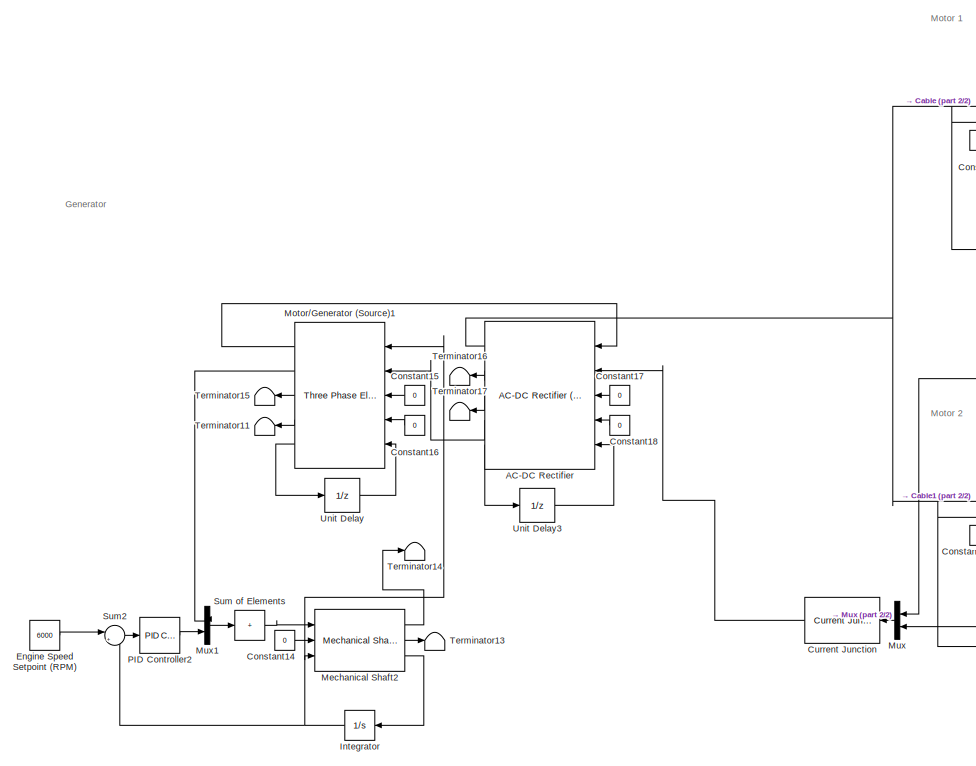
[diagram: root canvas - part 1/2, left side, full height]
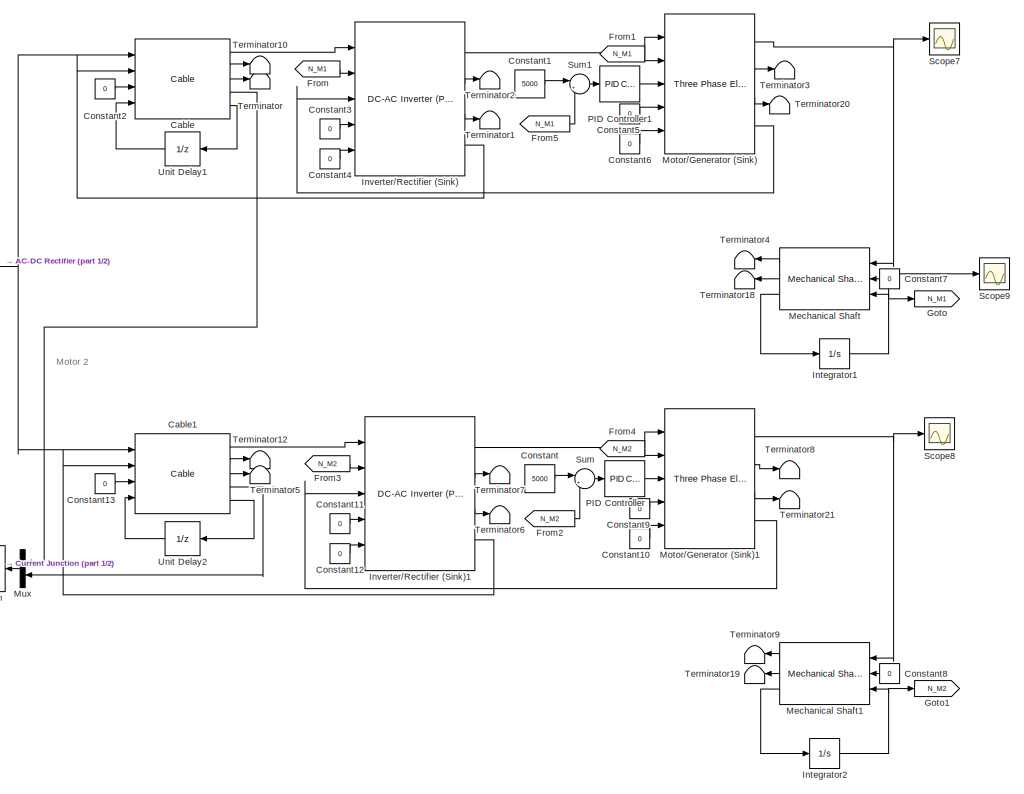
[diagram: root canvas - part 2/2, right side, full height]
MODEL slx_b73fb6815965
KIND model
CONFIG AbsTol = auto
CONFIG EnableMultiTasking = off
CONFIG FixedStep = 0.02
CONFIG MaxStep = auto
CONFIG MinStep = auto
CONFIG RelTol = 1e-3
CONFIG SampleTimeConstraint = Unconstrained
CONFIG SolverName = FixedStepAuto
CONFIG StartTime = 0.0
CONFIG StopTime = 10.0
BLOCK [Reference] AC-DC Rectifier  REF=Lib_EMTAT/Components/Power Flow/AC-DC Rectifier (Power Loss Map)
  Ports = [5, 5]
  SourceBlock = Lib_EMTAT/Components/Power Flow/AC-DC Rectifier (Power Loss Map)
  SourceType = AC-DC Rectifier (Power Loss Map)
BLOCK [Reference] Cable  REF=Lib_EMTAT/Components/Power Flow/Cable
  Ports = [4, 5]
  SourceBlock = Lib_EMTAT/Components/Power Flow/Cable
  SourceType = Cable
BLOCK [Reference] Cable1  REF=Lib_EMTAT/Components/Power Flow/Cable
  Ports = [4, 5]
  SourceBlock = Lib_EMTAT/Components/Power Flow/Cable
  SourceType = Cable
BLOCK [Constant] Constant
  Value = 5000
BLOCK [Constant] Constant1
  Value = 5000
BLOCK [Constant] Constant10
  Value = 0
BLOCK [Constant] Constant11
  Value = 0
BLOCK [Constant] Constant12
  Value = 0
BLOCK [Constant] Constant13
  Value = 0
BLOCK [Constant] Constant14
  Value = 0
BLOCK [Constant] Constant15
  Value = 0
BLOCK [Constant] Constant16
  Value = 0
BLOCK [Constant] Constant17
  Value = 0
BLOCK [Constant] Constant18
  Value = 0
BLOCK [Constant] Constant2
  Value = 0
BLOCK [Constant] Constant3
  Value = 0
BLOCK [Constant] Constant4
  Value = 0
BLOCK [Constant] Constant5
  Value = 0
BLOCK [Constant] Constant6
  Value = 0
BLOCK [Constant] Constant7
  Value = 0
BLOCK [Constant] Constant8
  Value = 0
BLOCK [Constant] Constant9
  Value = 0
BLOCK [Reference] Current Junction  REF=Lib_EMTAT/Components/Power Flow/Current Junction
  AttributesFormatString = Current Junction\nVersion: %<LibraryVersion>
  Ports = [1, 1]
  SourceBlock = Lib_EMTAT/Components/Power Flow/Current Junction
  SourceType = Current Junction
BLOCK [Constant] Engine Speed Setpoint (RPM)
  Value = 6000
BLOCK [From] From
  GotoTag = N_M1
BLOCK [From] From1
  GotoTag = N_M1
BLOCK [From] From2
  GotoTag = N_M2
BLOCK [From] From3
  GotoTag = N_M2
BLOCK [From] From4
  GotoTag = N_M2
BLOCK [From] From5
  GotoTag = N_M1
BLOCK [Goto] Goto
  GotoTag = N_M1
BLOCK [Goto] Goto1
  GotoTag = N_M2
BLOCK [Integrator] Integrator
  InitialCondition = 5000
  Ports = [1, 1]
BLOCK [Integrator] Integrator1
  Ports = [1, 1]
BLOCK [Integrator] Integrator2
  Ports = [1, 1]
BLOCK [Reference] Inverter//Rectifier (Sink)  REF=Lib_EMTAT/Components/Power Flow/DC-AC Inverter (Power Loss Map)
  Ports = [5, 4]
  SourceBlock = Lib_EMTAT/Components/Power Flow/DC-AC Inverter (Power Loss Map)
  SourceType = DC-AC Inverter (Power Loss Map)
BLOCK [Reference] Inverter//Rectifier (Sink)1  REF=Lib_EMTAT/Components/Power Flow/DC-AC Inverter (Power Loss Map)
  Ports = [5, 4]
  SourceBlock = Lib_EMTAT/Components/Power Flow/DC-AC Inverter (Power Loss Map)
  SourceType = DC-AC Inverter (Power Loss Map)
BLOCK [Reference] Mechanical Shaft  REF=Lib_EMTAT/Components/Power Flow/Mechanical Shaft
  AttributesFormatString = Mechanical Shaft\nVersion: %<LibraryVersion>
  Ports = [3, 3]
  SourceBlock = Lib_EMTAT/Components/Power Flow/Mechanical Shaft
  SourceType = Mechanical Shaft
BLOCK [Reference] Mechanical Shaft1  REF=Lib_EMTAT/Components/Power Flow/Mechanical Shaft
  AttributesFormatString = Mechanical Shaft\nVersion: %<LibraryVersion>
  Ports = [3, 3]
  SourceBlock = Lib_EMTAT/Components/Power Flow/Mechanical Shaft
  SourceType = Mechanical Shaft
BLOCK [Reference] Mechanical Shaft2  REF=Lib_EMTAT/Components/Power Flow/Mechanical Shaft
  AttributesFormatString = Mechanical Shaft\nVersion: %<LibraryVersion>
  Ports = [3, 3]
  SourceBlock = Lib_EMTAT/Components/Power Flow/Mechanical Shaft
  SourceType = Mechanical Shaft
BLOCK [Reference] Motor//Generator (Sink)  REF=Lib_EMTAT/Components/Power Flow/Three Phase Electric Machine
(Sink)
  Ports = [5, 4]
  SourceBlock = Lib_EMTAT/Components/Power Flow/Three Phase Electric Machine\n(Sink)
  SourceType = Three Phase Electric Machine (Sink)
BLOCK [Reference] Motor//Generator (Sink)1  REF=Lib_EMTAT/Components/Power Flow/Three Phase Electric Machine
(Sink)
  Ports = [5, 4]
  SourceBlock = Lib_EMTAT/Components/Power Flow/Three Phase Electric Machine\n(Sink)
  SourceType = Three Phase Electric Machine (Sink)
BLOCK [Reference] Motor//Generator (Source)1  REF=Lib_EMTAT/Components/Power Flow/Three Phase Electric Machine
(Source)
  Ports = [5, 5]
  SourceBlock = Lib_EMTAT/Components/Power Flow/Three Phase Electric Machine\n(Source)
  SourceType = Three Phase Electric Machine (Source)
BLOCK [Mux] Mux
  DisplayOption = bar
  Inputs = 2
  Ports = [2, 1]
BLOCK [Mux] Mux1
  DisplayOption = bar
  Inputs = 2
  Ports = [2, 1]
BLOCK [Reference] PID Controller  REF=slpidlib/PID Controller
  Ports = [1, 1]
  SourceBlock = slpidlib/PID Controller
  SourceType = PID 1dof
BLOCK [Reference] PID Controller1  REF=slpidlib/PID Controller
  Ports = [1, 1]
  SourceBlock = slpidlib/PID Controller
  SourceType = PID 1dof
BLOCK [Reference] PID Controller2  REF=slpidlib/PID Controller
  Ports = [1, 1]
  SourceBlock = slpidlib/PID Controller
  SourceType = PID 1dof
BLOCK [Scope] Scope7
  Floating = off
  NumInputPorts = 1
  Ports = [1]
  ScopeSpecificationString = Simulink.scopes.TimeScopeBlockCfg('CurrentConfiguration', extmgr.ConfigurationSet(extmgr.Configuration('Core','General UI',true),extmgr.Configuration('Core','Source UI',true),extmgr.Configuration('Sources','WiredSimulink',true,'DataLoggingVariableName','ScopeData1'),extmgr.Configuration('Visuals','Time Domain',true,'SerializedDisplays',{struct('MinYLimReal','4.99773','MaxYLimReal','5.02046','YLabe...<+1414ch>
BLOCK [Scope] Scope8
  Floating = off
  NumInputPorts = 1
  Ports = [1]
  ScopeSpecificationString = Simulink.scopes.TimeScopeBlockCfg('CurrentConfiguration', extmgr.ConfigurationSet(extmgr.Configuration('Core','General UI',true),extmgr.Configuration('Core','Source UI',true),extmgr.Configuration('Sources','WiredSimulink',true,'DataLoggingVariableName','ScopeData2'),extmgr.Configuration('Visuals','Time Domain',true,'SerializedDisplays',{struct('MinYLimReal','-2042.5668','MaxYLimReal','18383.10121'...<+1453ch>
BLOCK [Scope] Scope9
  Floating = off
  NumInputPorts = 1
  Ports = [1]
  ScopeSpecificationString = Simulink.scopes.TimeScopeBlockCfg('CurrentConfiguration', extmgr.ConfigurationSet(extmgr.Configuration('Core','General UI',true),extmgr.Configuration('Core','Source UI',true),extmgr.Configuration('Sources','WiredSimulink',true,'DataLoggingVariableName','ScopeData3'),extmgr.Configuration('Visuals','Time Domain',true,'SerializedDisplays',{struct('MinYLimReal','4437.50271','MaxYLimReal','5062.47564',...<+1446ch>
BLOCK [Sum] Sum
  Inputs = |+-
  Ports = [2, 1]
BLOCK [Sum] Sum of Elements
  IconShape = rectangular
  Inputs = +
  Ports = [1, 1]
BLOCK [Sum] Sum1
  Inputs = |+-
  Ports = [2, 1]
BLOCK [Sum] Sum2
  Inputs = |+-
  Ports = [2, 1]
BLOCK [Terminator] Terminator
BLOCK [Terminator] Terminator1
BLOCK [Terminator] Terminator10
BLOCK [Terminator] Terminator11
BLOCK [Terminator] Terminator12
BLOCK [Terminator] Terminator13
BLOCK [Terminator] Terminator14
BLOCK [Terminator] Terminator15
BLOCK [Terminator] Terminator16
BLOCK [Terminator] Terminator17
BLOCK [Terminator] Terminator18
BLOCK [Terminator] Terminator19
BLOCK [Terminator] Terminator2
BLOCK [Terminator] Terminator20
BLOCK [Terminator] Terminator21
BLOCK [Terminator] Terminator3
BLOCK [Terminator] Terminator4
BLOCK [Terminator] Terminator5
BLOCK [Terminator] Terminator6
BLOCK [Terminator] Terminator7
BLOCK [Terminator] Terminator8
BLOCK [Terminator] Terminator9
BLOCK [UnitDelay] Unit Delay
  HasFrameUpgradeWarning = on
  InitialCondition = 30
  SampleTime = -1
BLOCK [UnitDelay] Unit Delay1
  HasFrameUpgradeWarning = on
  InitialCondition = 56
  SampleTime = -1
BLOCK [UnitDelay] Unit Delay2
  HasFrameUpgradeWarning = on
  SampleTime = -1
BLOCK [UnitDelay] Unit Delay3
  HasFrameUpgradeWarning = on
  InitialCondition = 30
  SampleTime = -1
ANNOTATION (root): Generator
ANNOTATION (root): Motor 1
ANNOTATION (root): Motor 2
NET AC-DC Rectifier:1 -> Cable1:1, Cable:1
LINE AC-DC Rectifier:2 -> Terminator16:1
LINE AC-DC Rectifier:3 -> Terminator17:1
LINE AC-DC Rectifier:4 -> Motor//Generator (Source)1:2
LINE AC-DC Rectifier:5 -> Unit Delay3:1
LINE Cable1:1 -> Inverter//Rectifier (Sink)1:1
LINE Cable1:2 -> Terminator12:1
LINE Cable1:3 -> Terminator5:1
LINE Cable1:4 -> Mux:2
LINE Cable1:5 -> Unit Delay2:1
LINE Cable:1 -> Inverter//Rectifier (Sink):1
LINE Cable:2 -> Terminator10:1
LINE Cable:3 -> Terminator:1
LINE Cable:4 -> Mux:1
LINE Cable:5 -> Unit Delay1:1
LINE Constant10:1 -> Motor//Generator (Sink)1:5
LINE Constant11:1 -> Inverter//Rectifier (Sink)1:4
LINE Constant12:1 -> Inverter//Rectifier (Sink)1:5
LINE Constant13:1 -> Cable1:3
LINE Constant14:1 -> Mechanical Shaft2:2
LINE Constant15:1 -> Motor//Generator (Source)1:3
LINE Constant16:1 -> Motor//Generator (Source)1:4
LINE Constant17:1 -> AC-DC Rectifier:3
LINE Constant18:1 -> AC-DC Rectifier:4
LINE Constant1:1 -> Sum1:1
LINE Constant2:1 -> Cable:3
LINE Constant3:1 -> Inverter//Rectifier (Sink):4
LINE Constant4:1 -> Inverter//Rectifier (Sink):5
LINE Constant5:1 -> Motor//Generator (Sink):4
LINE Constant6:1 -> Motor//Generator (Sink):5
LINE Constant7:1 -> Mechanical Shaft:2
LINE Constant8:1 -> Mechanical Shaft1:2
LINE Constant9:1 -> Motor//Generator (Sink)1:4
LINE Constant:1 -> Sum:1
LINE Current Junction:1 -> AC-DC Rectifier:2
LINE Engine Speed Setpoint (RPM):1 -> Sum2:1
LINE From1:1 -> Motor//Generator (Sink):2
LINE From2:1 -> Sum:2
LINE From3:1 -> Inverter//Rectifier (Sink)1:2
LINE From4:1 -> Motor//Generator (Sink)1:2
LINE From5:1 -> Sum1:2
LINE From:1 -> Inverter//Rectifier (Sink):2
NET Integrator1:1 -> Goto:1, Mechanical Shaft:3, Scope9:1
NET Integrator2:1 -> Goto1:1, Mechanical Shaft1:3
NET Integrator:1 -> Mechanical Shaft2:3, Motor//Generator (Source)1:1, Sum2:2
LINE Inverter//Rectifier (Sink)1:1 -> Motor//Generator (Sink)1:1
LINE Inverter//Rectifier (Sink)1:2 -> Terminator7:1
LINE Inverter//Rectifier (Sink)1:3 -> Terminator6:1
LINE Inverter//Rectifier (Sink)1:4 -> Cable1:2
LINE Inverter//Rectifier (Sink):1 -> Motor//Generator (Sink):1
LINE Inverter//Rectifier (Sink):2 -> Terminator2:1
LINE Inverter//Rectifier (Sink):3 -> Terminator1:1
LINE Inverter//Rectifier (Sink):4 -> Cable:2
LINE Mechanical Shaft1:1 -> Terminator9:1
LINE Mechanical Shaft1:2 -> Terminator19:1
LINE Mechanical Shaft1:3 -> Integrator2:1
LINE Mechanical Shaft2:1 -> Terminator14:1
LINE Mechanical Shaft2:2 -> Terminator13:1
LINE Mechanical Shaft2:3 -> Integrator:1
LINE Mechanical Shaft:1 -> Terminator4:1
LINE Mechanical Shaft:2 -> Terminator18:1
LINE Mechanical Shaft:3 -> Integrator1:1
NET Motor//Generator (Sink)1:1 -> Mechanical Shaft1:1, Scope8:1
LINE Motor//Generator (Sink)1:2 -> Terminator8:1
LINE Motor//Generator (Sink)1:3 -> Terminator21:1
LINE Motor//Generator (Sink)1:4 -> Inverter//Rectifier (Sink)1:3
NET Motor//Generator (Sink):1 -> Mechanical Shaft:1, Scope7:1
LINE Motor//Generator (Sink):2 -> Terminator3:1
LINE Motor//Generator (Sink):3 -> Terminator20:1
LINE Motor//Generator (Sink):4 -> Inverter//Rectifier (Sink):3
LINE Motor//Generator (Source)1:1 -> AC-DC Rectifier:1
LINE Motor//Generator (Source)1:2 -> Mux1:1
LINE Motor//Generator (Source)1:3 -> Terminator15:1
LINE Motor//Generator (Source)1:4 -> Terminator11:1
LINE Motor//Generator (Source)1:5 -> Unit Delay:1
LINE Mux1:1 -> Sum of Elements:1
LINE Mux:1 -> Current Junction:1
LINE PID Controller1:1 -> Motor//Generator (Sink):3
LINE PID Controller2:1 -> Mux1:2
LINE PID Controller:1 -> Motor//Generator (Sink)1:3
LINE Sum of Elements:1 -> Mechanical Shaft2:1
LINE Sum1:1 -> PID Controller1:1
LINE Sum2:1 -> PID Controller2:1
LINE Sum:1 -> PID Controller:1
LINE Unit Delay1:1 -> Cable:4
LINE Unit Delay2:1 -> Cable1:4
LINE Unit Delay3:1 -> AC-DC Rectifier:5
LINE Unit Delay:1 -> Motor//Generator (Source)1:5
note: NET lines group one-source signal fan-out (src -> all destinations, sorted); 1:1 wires keep LINE
